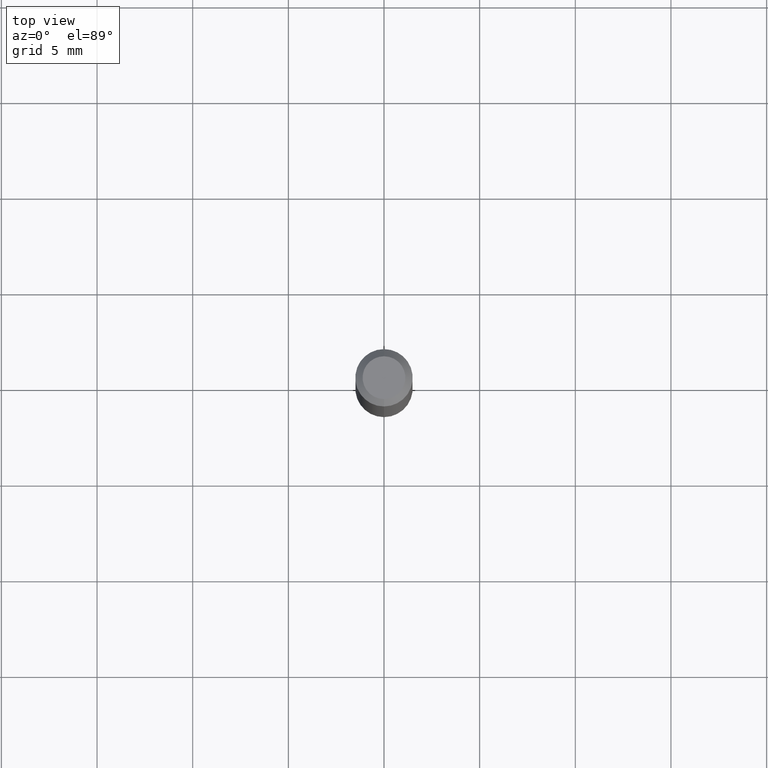
[diagram: clean part render]
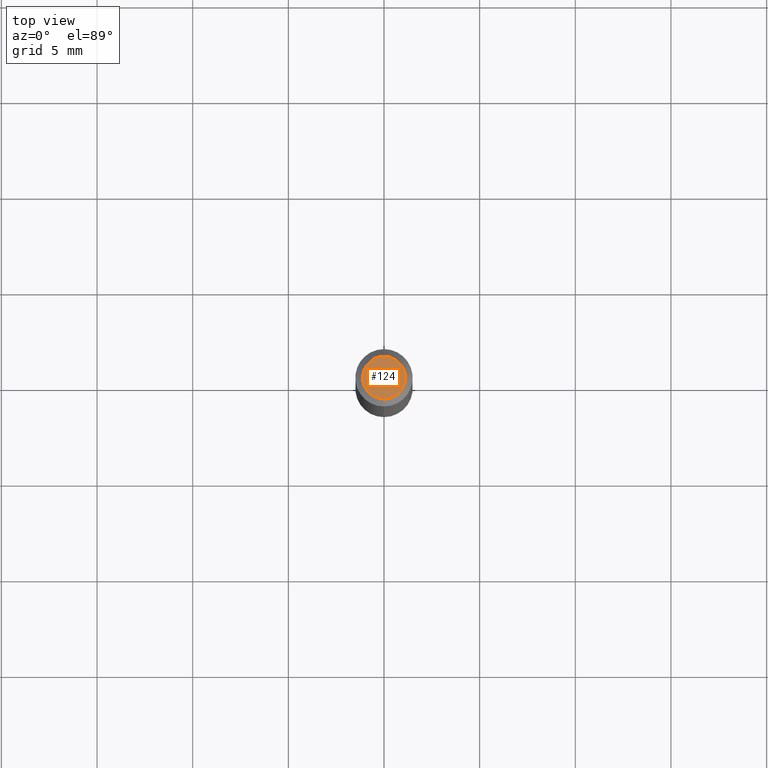
[diagram: same view with one face highlighted and labeled with its STEP entity id]
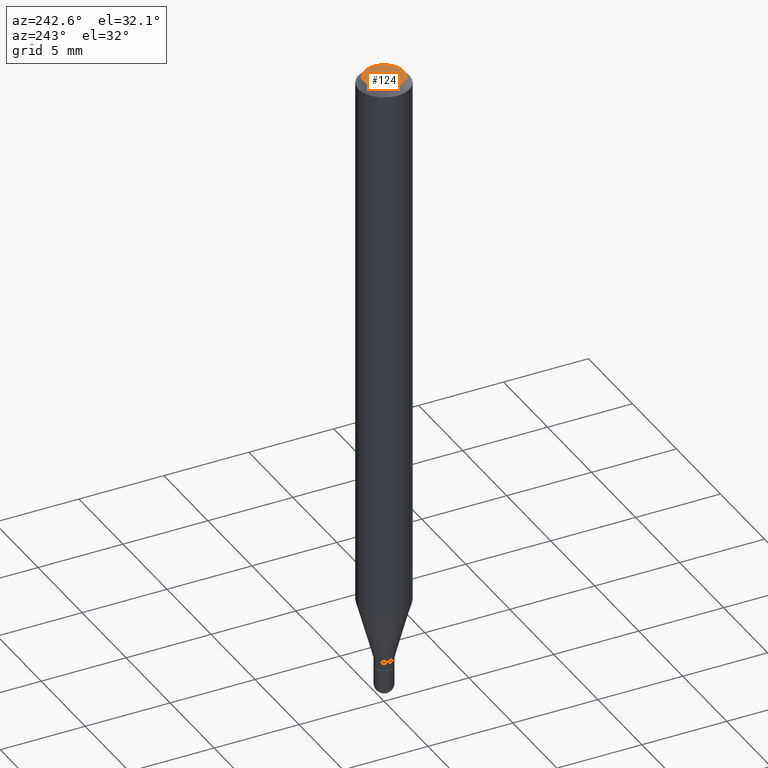
[diagram: same view with one face highlighted and labeled with its STEP entity id]
A machine part, top view. The second image highlights one B-rep face of the part: STEP entity #124.
A second angle (auxiliary view) of the same face is appended — the face is thin or edge-on in the first view.
In plain terms, the highlighted planar face has unit normal (0, -0, -1).
Its self-contained STEP definition (entity closure, byte-faithful):
#8 = CARTESIAN_POINT ( 'NONE',  ( -3.536586717851222218E-16, -0.04404999999999999888, 6.220162960281877203E-17 ) ) ;
#9 = DIRECTION ( 'NONE',  ( 6.982962677686265922E-15, 1.000000000000000000, -3.492238314359125882E-15 ) ) ;
#57 = CARTESIAN_POINT ( 'NONE',  ( 3.599717260347271507E-16, 0.04404999999999999888, -2.454645658922200893E-16 ) ) ;
#85 = CARTESIAN_POINT ( 'NONE',  ( 2.240334612438976908E-45, -3.199989238559014151E-31, -9.163146814470068329E-17 ) ) ;
#103 = EDGE_LOOP ( 'NONE', ( #413, #212 ) ) ;
#117 = CARTESIAN_POINT ( 'NONE',  ( 2.240334612438976908E-45, -3.199989238559014151E-31, -9.163146814470068329E-17 ) ) ;
#123 = DIRECTION ( 'NONE',  ( -2.444940213007535554E-29, 3.492238314359125487E-15, 1.000000000000000000 ) ) ;
#124 = ADVANCED_FACE ( 'NONE', ( #239 ), #482, .F. ) ;
#161 = CARTESIAN_POINT ( 'NONE',  ( 3.075995059520799729E-16, 0.04404999999999999888, -1.996488318198698031E-16 ) ) ;
#190 = AXIS2_PLACEMENT_3D ( 'NONE', #85, #123, #234 ) ;
#194 = EDGE_CURVE ( 'NONE', #343, #262, #198, .T. ) ;
#198 = CIRCLE ( 'NONE', #190, 0.04404999999999999888 ) ;
#212 = ORIENTED_EDGE ( 'NONE', *, *, #194, .T. ) ;
#234 = DIRECTION ( 'NONE',  ( -6.982962677686265133E-15, -1.000000000000000000, 3.492238314359124699E-15 ) ) ;
#239 = FACE_OUTER_BOUND ( 'NONE', #103, .T. ) ;
#262 = VERTEX_POINT ( 'NONE', #57 ) ;
#271 = DIRECTION ( 'NONE',  ( -2.444940213007535554E-29, 3.492238314359125487E-15, 1.000000000000000000 ) ) ;
#282 = DIRECTION ( 'NONE',  ( -6.982962677686265133E-15, -1.000000000000000000, 3.492238314359124699E-15 ) ) ;
#288 = AXIS2_PLACEMENT_3D ( 'NONE', #161, #316, #9 ) ;
#305 = EDGE_CURVE ( 'NONE', #262, #343, #319, .T. ) ;
#316 = DIRECTION ( 'NONE',  ( 2.444940213007534993E-29, -3.492238314359125882E-15, -1.000000000000000000 ) ) ;
#319 = CIRCLE ( 'NONE', #362, 0.04404999999999999888 ) ;
#343 = VERTEX_POINT ( 'NONE', #8 ) ;
#362 = AXIS2_PLACEMENT_3D ( 'NONE', #117, #271, #282 ) ;
#413 = ORIENTED_EDGE ( 'NONE', *, *, #305, .T. ) ;
#482 = PLANE ( 'NONE',  #288 ) ;